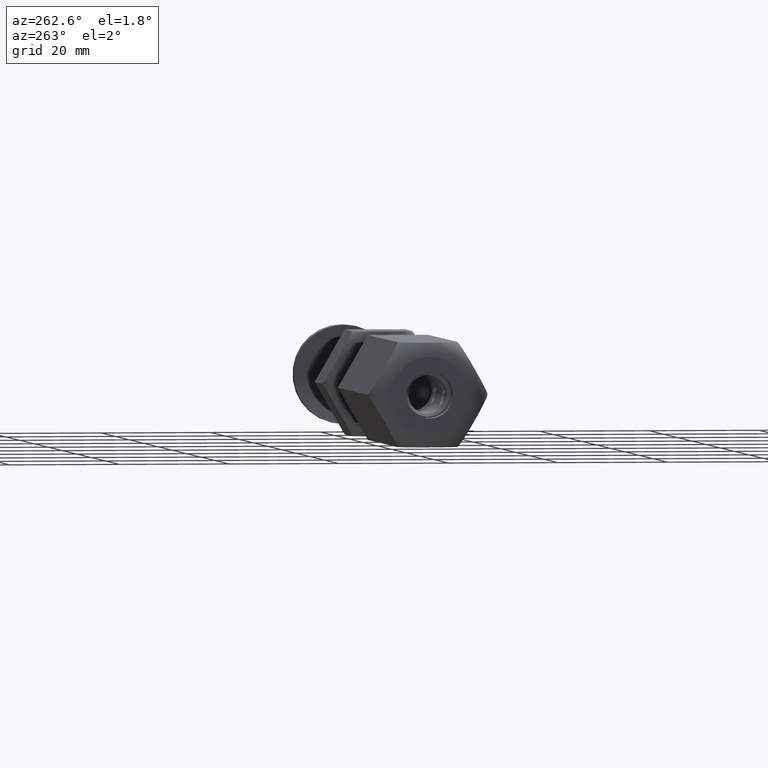
[diagram: clean part render]
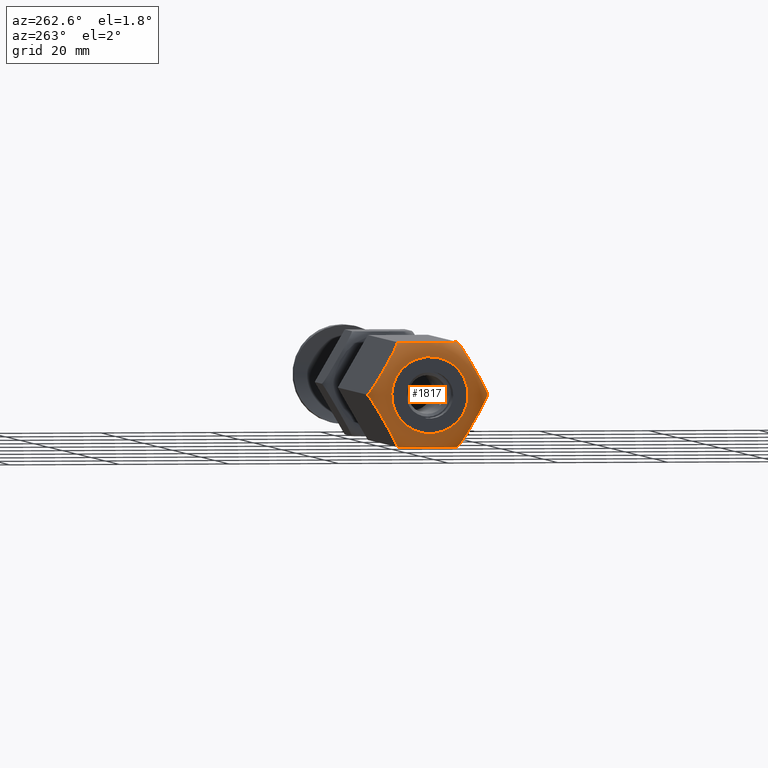
[diagram: same view with one face highlighted and labeled with its STEP entity id]
A machine part, auxiliary view. The second image highlights one B-rep face of the part: STEP entity #1817.
In plain terms, the highlighted toroidal blend (fillet) surface has major radius 6.9697 mm and minor (blend) radius 4 mm.
Its self-contained STEP definition (entity closure, byte-faithful):
#140 = CARTESIAN_POINT ( 'NONE',  ( -5.746149253409090996, 7.652114296343381028, 44.05675738102539896 ) ) ;
#163 = CARTESIAN_POINT ( 'NONE',  ( 0.2096293518114210330, -10.84862555190451872, 41.97842836769320485 ) ) ;
#187 = FACE_OUTER_BOUND ( 'NONE', #5970, .T. ) ;
#260 = CARTESIAN_POINT ( 'NONE',  ( -0.1074483461378910043, 10.90761978303619273, 41.71254742186170716 ) ) ;
#391 = CARTESIAN_POINT ( 'NONE',  ( -9.087533513614141967, -5.722965194248022414, 42.34401321087241854 ) ) ;
#490 = CARTESIAN_POINT ( 'NONE',  ( 9.500000000000001776, 5.013585651709942859, 42.35461333382185956 ) ) ;
#544 = CARTESIAN_POINT ( 'NONE',  ( 0.4079178571029115075, 10.73414362999726634, 42.35403578762996801 ) ) ;
#916 = CARTESIAN_POINT ( 'NONE',  ( 9.499999999999992895, -5.484827557301450440, 40.99999999999999289 ) ) ;
#1144 = B_SPLINE_CURVE_WITH_KNOTS ( 'NONE', 3,
 ( #8438, #11130, #13924, #15254, #11297, #11185, #6908, #5615, #12501, #5562, #5668, #4088, #1360, #15312, #8320, #140, #18079, #9718, #9773, #2826, #4201, #15373, #1470, #2941, #4031, #17405, #13198, #8981, #7132, #11358, #1957, #260, #16942, #15542, #6233, #3051 ),
 .UNSPECIFIED., .F., .F.,
 ( 4, 2, 2, 2, 2, 2, 2, 2, 2, 2, 2, 2, 2, 2, 2, 2, 2, 4 ),
 ( 1.970171766495558710E-07, 0.0004336534328667719304, 0.0008671098485568943691, 0.001734022679937157569, 0.002600935511317420661, 0.003467848342697683970, 0.004334761174077946845, 0.005201674005458210154, 0.006935499668218738506, 0.008669325330979266858, 0.009536238162359531034, 0.01040315099373979521, 0.01127006382512006112, 0.01213697665650032703, 0.01257043307219046432, 0.01300388948788060509, 0.01343734590357074238, 0.01387080231926088314 ),
 .UNSPECIFIED. ) ;
#1157 = CARTESIAN_POINT ( 'NONE',  ( 2.778568392603399939, -9.365447905171528475, 43.86274081669362346 ) ) ;
#1179 = CARTESIAN_POINT ( 'NONE',  ( 8.749598401841787165, -5.918072121998414481, 42.77482519484067325 ) ) ;
#1180 = ORIENTED_EDGE ( 'NONE', *, *, #14358, .F. ) ;
#1259 = CARTESIAN_POINT ( 'NONE',  ( -9.500000000000001776, 5.173457888380996295, 42.10142971479526608 ) ) ;
#1319 = CARTESIAN_POINT ( 'NONE',  ( -9.500000000000001776, -2.844431066938136965, 43.73303398536184972 ) ) ;
#1360 = CARTESIAN_POINT ( 'NONE',  ( -7.207038754022406124, 6.808669349907987112, 43.71285843032678287 ) ) ;
#1433 = CARTESIAN_POINT ( 'NONE',  ( -9.500000000000003553, -5.182623242737443015, 42.11369615199313898 ) ) ;
#1470 = CARTESIAN_POINT ( 'NONE',  ( -2.058143797317456336, 9.781385239190695913, 43.62364900213911056 ) ) ;
#1619 = CARTESIAN_POINT ( 'NONE',  ( -2.662758681361504645E-15, -10.96965511460289200, 40.99999999999999289 ) ) ;
#1669 = CARTESIAN_POINT ( 'NONE',  ( 0.1074483461379034110, -10.90761978303619095, 41.71254742186172138 ) ) ;
#1722 = B_SPLINE_CURVE_WITH_KNOTS ( 'NONE', 3,
 ( #12152, #13536, #15160, #13943, #9787, #1433, #15102, #3991, #2606, #6925, #2781, #1319, #2662, #6810, #11039, #13882, #12454, #5402, #13776, #4046, #16544, #6868, #9674, #6983, #15272, #2724, #8337, #1259, #13828, #16729, #8394, #5465, #16666, #3926 ),
 .UNSPECIFIED., .F., .F.,
 ( 4, 2, 2, 2, 2, 2, 2, 2, 2, 2, 2, 2, 2, 2, 2, 2, 4 ),
 ( 0.02061078917373725464, 0.02103961468721956413, 0.02146844020070187015, 0.02232609122766650647, 0.02318374225463114280, 0.02404139328159577912, 0.02575669533552505178, 0.02747199738945432443, 0.02918729944338359361, 0.03004495047034823341, 0.03090260149731286626, 0.03176025252427749912, 0.03261790355124213892, 0.03304672906472446575, 0.03347555457820679259, 0.03390438009168911249, 0.03433320560517143932 ),
 .UNSPECIFIED. ) ;
#1750 = CARTESIAN_POINT ( 'NONE',  ( 0.01387679552006076782, 10.96164334297389154, 41.29054539716901218 ) ) ;
#1786 = CARTESIAN_POINT ( 'NONE',  ( -9.486107349758023943, -5.492848482658410525, 41.29056907888802641 ) ) ;
#1817 = ADVANCED_FACE ( 'NONE', ( #187, #8279 ), #14586, .T. ) ;
#1847 = CARTESIAN_POINT ( 'NONE',  ( -9.228811346639384183, -5.641398399320372015, 42.10434891476232622 ) ) ;
#1872 = CARTESIAN_POINT ( 'NONE',  ( 7.441856202682536114, 6.673097432713642085, 43.62364900213911056 ) ) ;
#1908 = CARTESIAN_POINT ( 'NONE',  ( -5.746289545444438041, -7.652033298699014274, 44.05664237914576375 ) ) ;
#1934 = CARTESIAN_POINT ( 'NONE',  ( 9.087533513614150849, 5.722965194248011755, 42.34401321087241854 ) ) ;
#1945 = CARTESIAN_POINT ( 'NONE',  ( 9.499999999999998224, 5.406508719385637818, 41.57499903506205641 ) ) ;
#1957 = CARTESIAN_POINT ( 'NONE',  ( -0.2096293518114090426, 10.84862555190452227, 41.97842836769322616 ) ) ;
#1984 = EDGE_LOOP ( 'NONE', ( #7456, #17737, #6610, #10709, #1180, #10881 ) ) ;
#2067 = CARTESIAN_POINT ( 'NONE',  ( 0.2608168449322912918, 10.81907243897203941, 42.11147553663365528 ) ) ;
#2075 = CARTESIAN_POINT ( 'NONE',  ( 9.500000000000005329, 1.139199404431380236, 44.05807432680976632 ) ) ;
#2195 = CARTESIAN_POINT ( 'NONE',  ( 9.500000000000000000, -5.173457888380992742, 42.10142971479525897 ) ) ;
#2606 = CARTESIAN_POINT ( 'NONE',  ( -9.500000000000001776, -4.389694262550531967, 42.95766156815216874 ) ) ;
#2662 = CARTESIAN_POINT ( 'NONE',  ( -9.499999999999998224, -2.277844194733424477, 43.87583449004472413 ) ) ;
#2700 = CARTESIAN_POINT ( 'NONE',  ( 3.753710454555565956, -8.802449373205325500, 44.05664237914577797 ) ) ;
#2724 = CARTESIAN_POINT ( 'NONE',  ( -9.500000000000000000, 4.917998417756520801, 42.45559523632030619 ) ) ;
#2781 = CARTESIAN_POINT ( 'NONE',  ( -9.500000000000001776, -3.641228963904356242, 43.40259825967543605 ) ) ;
#2826 = CARTESIAN_POINT ( 'NONE',  ( -3.021065120984054442, 9.225442353763350312, 43.92069474690411823 ) ) ;
#2907 = CARTESIAN_POINT ( 'NONE',  ( 0.4124664863858539809, -10.73151747765632003, 42.34401321087241854 ) ) ;
#2941 = CARTESIAN_POINT ( 'NONE',  ( -1.593998663515251213, 10.04935955713445139, 43.40131334444888722 ) ) ;
#3051 = CARTESIAN_POINT ( 'NONE',  ( 1.214306433183764966E-14, 10.96965511460288845, 40.99999999999999289 ) ) ;
#3055 = EDGE_CURVE ( 'NONE', #8391, #8328, #11475, .T. ) ;
#3069 = VERTEX_POINT ( 'NONE', #14501 ) ;
#3074 = CARTESIAN_POINT ( 'NONE',  ( 0.06728216614629926873, -10.93080973786666377, 41.57272147207824275 ) ) ;
#3113 = CARTESIAN_POINT ( 'NONE',  ( -9.499999999999991118, -5.484827557301453993, 40.99999999999999289 ) ) ;
#3185 = CARTESIAN_POINT ( 'NONE',  ( -0.9481396356622003863, -10.42224644072396877, 42.95737215773480244 ) ) ;
#3280 = CARTESIAN_POINT ( 'NONE',  ( 9.500000000000003553, 4.615178690308512799, 42.77783973590173616 ) ) ;
#3307 = CARTESIAN_POINT ( 'NONE',  ( -3.019137282246467713, -9.226555391977461440, 43.92029236874594034 ) ) ;
#3337 = CARTESIAN_POINT ( 'NONE',  ( 9.500000000000001776, 2.844431066938136521, 43.73303398536185682 ) ) ;
#3372 = CARTESIAN_POINT ( 'NONE',  ( -8.130230771905711862, -6.275664189869351262, 43.27037286388833337 ) ) ;
#3459 = CARTESIAN_POINT ( 'NONE',  ( 1.370466869360149831, 10.17841569866234330, 43.27070080692345044 ) ) ;
#3470 = CARTESIAN_POINT ( 'NONE',  ( 9.500000000000000000, -3.123764832072919440, 43.61800818784174538 ) ) ;
#3537 = CARTESIAN_POINT ( 'NONE',  ( 9.500000000000001776, -2.291064191819613516, 43.85944363510402866 ) ) ;
#3594 = CARTESIAN_POINT ( 'NONE',  ( 9.500000000000001776, -5.407798282936109757, 41.57043944271958225 ) ) ;
#3618 = CARTESIAN_POINT ( 'NONE',  ( 9.392357395636423689, -5.546975043907027114, 41.71312555923451271 ) ) ;
#3652 = CARTESIAN_POINT ( 'NONE',  ( 9.500000000000001776, -5.469102340158111808, 41.28836256158390228 ) ) ;
#3844 = CARTESIAN_POINT ( 'NONE',  ( 6.724234168576180615, -7.087416707281356310, 43.86206037955516024 ) ) ;
#3852 = VERTEX_POINT ( 'NONE', #3113 ) ;
#3926 = CARTESIAN_POINT ( 'NONE',  ( -9.499999999999996447, 5.484827557301445999, 40.99999999999999289 ) ) ;
#3991 = CARTESIAN_POINT ( 'NONE',  ( -9.500000000000003553, -4.615178690308510134, 42.77783973590176458 ) ) ;
#4031 = CARTESIAN_POINT ( 'NONE',  ( -1.369769228094275704, 10.17881848203499118, 43.27037286388834758 ) ) ;
#4046 = CARTESIAN_POINT ( 'NONE',  ( -9.499999999999998224, 2.847465520593317923, 43.70964040642540738 ) ) ;
#4088 = CARTESIAN_POINT ( 'NONE',  ( -7.446822779551734328, 6.670229978221253297, 43.62148147512581886 ) ) ;
#4201 = CARTESIAN_POINT ( 'NONE',  ( -2.778568392603388837, 9.365447905171532028, 43.86274081669363056 ) ) ;
#4467 = CARTESIAN_POINT ( 'NONE',  ( 0.000000000000000000, 1.734723475976807094E-15, 45.00000000000000000 ) ) ;
#4509 = CARTESIAN_POINT ( 'NONE',  ( -1.170034844473985693E-14, -10.96965511460288667, 41.14667168911100958 ) ) ;
#4658 = CARTESIAN_POINT ( 'NONE',  ( 6.478934879015941561, 7.229040318140980581, 43.92069474690413244 ) ) ;
#4727 = CARTESIAN_POINT ( 'NONE',  ( 9.500000000000003553, 2.277844194733428917, 43.87583449004473835 ) ) ;
#4830 = CARTESIAN_POINT ( 'NONE',  ( -6.721431607396602281, -7.089034766732805082, 43.86274081669362346 ) ) ;
#4853 = CARTESIAN_POINT ( 'NONE',  ( 7.202040441340117560, 6.811555127080601402, 43.71458572105390061 ) ) ;
#4861 = CARTESIAN_POINT ( 'NONE',  ( 9.499999999999998224, -5.484827557302361711, 41.14526559634035152 ) ) ;
#4956 = CARTESIAN_POINT ( 'NONE',  ( 9.486123204479936177, -5.492839328930444687, 41.29054539716901928 ) ) ;
#4998 = CARTESIAN_POINT ( 'NONE',  ( 9.500000000000000000, -2.847465520593317478, 43.70964040642540738 ) ) ;
#5137 = CARTESIAN_POINT ( 'NONE',  ( 7.446822779551736993, -6.670229978221255962, 43.62148147512580465 ) ) ;
#5312 = ORIENTED_EDGE ( 'NONE', *, *, #8177, .T. ) ;
#5402 = CARTESIAN_POINT ( 'NONE',  ( -9.500000000000001776, 2.010578411236906504, 43.91797283457773204 ) ) ;
#5465 = CARTESIAN_POINT ( 'NONE',  ( -9.500000000000001776, 5.469102340158117137, 41.28836256158390228 ) ) ;
#5509 = CIRCLE ( 'NONE', #8560, 6.969655114602885781 ) ;
#5562 = CARTESIAN_POINT ( 'NONE',  ( -8.129533130639849503, 6.276066973241989366, 43.27070080692345755 ) ) ;
#5615 = CARTESIAN_POINT ( 'NONE',  ( -8.749598401841790718, 5.918072121998408264, 42.77482519484067325 ) ) ;
#5668 = CARTESIAN_POINT ( 'NONE',  ( -7.907273331264584648, 6.404388728241327655, 43.40048957431875465 ) ) ;
#5956 = CARTESIAN_POINT ( 'NONE',  ( 9.499999999999998224, 5.468641017583585118, 41.29182092186051278 ) ) ;
#5970 = EDGE_LOOP ( 'NONE', ( #5312 ) ) ;
#5985 = CARTESIAN_POINT ( 'NONE',  ( -9.392551653862094341, -5.546862888868147934, 41.71254742186172848 ) ) ;
#6017 = CARTESIAN_POINT ( 'NONE',  ( 9.500000000000003553, 5.360823783412460131, 41.71252927763232066 ) ) ;
#6146 = CARTESIAN_POINT ( 'NONE',  ( 9.007164337273732002, 5.769366359842703851, 42.45831529050607855 ) ) ;
#6182 = CARTESIAN_POINT ( 'NONE',  ( -0.2608168449323025606, -10.81907243897203941, 42.11147553663365528 ) ) ;
#6217 = CARTESIAN_POINT ( 'NONE',  ( 9.500000000000001776, 5.182623242737443903, 42.11369615199313898 ) ) ;
#6233 = CARTESIAN_POINT ( 'NONE',  ( 8.261394678886944744E-15, 10.96965511460289200, 41.14676478437783658 ) ) ;
#6249 = CARTESIAN_POINT ( 'NONE',  ( -0.4079178571029237199, -10.73414362999726812, 42.35403578762995380 ) ) ;
#6270 = CARTESIAN_POINT ( 'NONE',  ( 9.228811346639393065, 5.641398399320363133, 42.10434891476233332 ) ) ;
#6307 = B_SPLINE_CURVE_WITH_KNOTS ( 'NONE', 3,
 ( #10589, #10459, #4956, #9243, #3618, #17347, #9480, #1179, #12127, #10823, #9363, #5137, #6598, #3844, #10892, #6723, #8131, #17959, #2700, #7925, #1157, #16977, #7473, #15616, #11206, #14177, #16854, #16968, #2907, #8514, #163, #1669, #3074, #16793, #8460, #8400 ),
 .UNSPECIFIED., .F., .F.,
 ( 4, 2, 2, 2, 2, 2, 2, 2, 2, 2, 2, 2, 2, 2, 2, 2, 2, 4 ),
 ( 1.970171766495558710E-07, 0.0004336534328667695452, 0.0008671098485568895986, 0.001734022679937151064, 0.002600935511317412421, 0.003467848342697673995, 0.004334761174077936437, 0.005201674005458199745, 0.006935499668218721159, 0.008669325330979239103, 0.009536238162359501544, 0.01040315099373976225, 0.01127006382512002469, 0.01213697665650028540, 0.01257043307219042443, 0.01300388948788056172, 0.01343734590357070074, 0.01387080231926083977 ),
 .UNSPECIFIED. ) ;
#6330 = CARTESIAN_POINT ( 'NONE',  ( 7.906001336484742126, 6.405123114769884829, 43.40131334444888722 ) ) ;
#6331 = CARTESIAN_POINT ( 'NONE',  ( 9.499999999999996447, 5.484827557301445111, 40.99999999999999289 ) ) ;
#6569 = CARTESIAN_POINT ( 'NONE',  ( 1.214306433183764966E-14, 10.96965511460288845, 40.99999999999999289 ) ) ;
#6598 = CARTESIAN_POINT ( 'NONE',  ( 7.207038754022402571, -6.808669349907988888, 43.71285843032676866 ) ) ;
#6610 = ORIENTED_EDGE ( 'NONE', *, *, #17053, .F. ) ;
#6723 = CARTESIAN_POINT ( 'NONE',  ( 5.746149253409094548, -7.652114296343383693, 44.05675738102539185 ) ) ;
#6810 = CARTESIAN_POINT ( 'NONE',  ( -9.500000000000001776, -1.139199404431374019, 44.05807432680976632 ) ) ;
#6868 = CARTESIAN_POINT ( 'NONE',  ( -9.499999999999998224, 3.655718835510457509, 43.39572968777603279 ) ) ;
#6908 = CARTESIAN_POINT ( 'NONE',  ( -9.092082142897089270, 5.720339041907063660, 42.35403578762996801 ) ) ;
#6925 = CARTESIAN_POINT ( 'NONE',  ( -9.500000000000000000, -3.900897879714690930, 43.27154627013154453 ) ) ;
#6983 = CARTESIAN_POINT ( 'NONE',  ( -9.500000000000000000, 4.400181222436072126, 42.94970153422130466 ) ) ;
#7061 = EDGE_CURVE ( 'NONE', #15389, #8391, #1144, .T. ) ;
#7132 = CARTESIAN_POINT ( 'NONE',  ( -0.4124664863858385488, 10.73151747765632003, 42.34401321087241143 ) ) ;
#7288 = CARTESIAN_POINT ( 'NONE',  ( 1.214306433183764966E-14, 10.96965511460288845, 40.99999999999999289 ) ) ;
#7297 = DIRECTION ( 'NONE',  ( -0.000000000000000000, -0.000000000000000000, -1.000000000000000000 ) ) ;
#7389 = CARTESIAN_POINT ( 'NONE',  ( -9.499999999999991118, -5.484827557301453993, 40.99999999999999289 ) ) ;
#7456 = ORIENTED_EDGE ( 'NONE', *, *, #3055, .F. ) ;
#7473 = CARTESIAN_POINT ( 'NONE',  ( 2.058143797317470103, -9.781385239190688807, 43.62364900213911056 ) ) ;
#7488 = CARTESIAN_POINT ( 'NONE',  ( 5.746289545444438041, 7.652033298699012498, 44.05664237914577797 ) ) ;
#7526 = CARTESIAN_POINT ( 'NONE',  ( -1.370466869360159601, -10.17841569866234153, 43.27070080692345044 ) ) ;
#7545 = CARTESIAN_POINT ( 'NONE',  ( 5.251150971816114676, 7.937901687469492096, 44.09793675888082731 ) ) ;
#7589 = CARTESIAN_POINT ( 'NONE',  ( -7.441856202682529897, -6.673097432713646526, 43.62364900213910346 ) ) ;
#7651 = CARTESIAN_POINT ( 'NONE',  ( -3.753850746590910337, -8.802368375560954306, 44.05675738102539896 ) ) ;
#7680 = CARTESIAN_POINT ( 'NONE',  ( 9.500000000000001776, -3.914850968721924840, 43.26375183071365882 ) ) ;
#7810 = CARTESIAN_POINT ( 'NONE',  ( 9.500000000000001776, 0.5620901871002182970, 44.09870003974981501 ) ) ;
#7925 = CARTESIAN_POINT ( 'NONE',  ( 3.021065120984062435, -9.225442353763352088, 43.92069474690411823 ) ) ;
#8131 = CARTESIAN_POINT ( 'NONE',  ( 5.250349426452457280, -7.938364459900969727, 44.09798277058472138 ) ) ;
#8177 = EDGE_CURVE ( 'NONE', #9688, #9688, #5509, .T. ) ;
#8279 = FACE_OUTER_BOUND ( 'NONE', #1984, .T. ) ;
#8320 = CARTESIAN_POINT ( 'NONE',  ( -6.480862717753538504, 7.227927279926873005, 43.92029236874594034 ) ) ;
#8328 = VERTEX_POINT ( 'NONE', #6331 ) ;
#8337 = CARTESIAN_POINT ( 'NONE',  ( -9.500000000000001776, 5.010300457011280351, 42.34175406390875906 ) ) ;
#8391 = VERTEX_POINT ( 'NONE', #6569 ) ;
#8394 = CARTESIAN_POINT ( 'NONE',  ( -9.500000000000000000, 5.407798282936115086, 41.57043944271957514 ) ) ;
#8400 = CARTESIAN_POINT ( 'NONE',  ( -2.662758681361504645E-15, -10.96965511460289200, 40.99999999999999289 ) ) ;
#8438 = CARTESIAN_POINT ( 'NONE',  ( -9.499999999999996447, 5.484827557301445999, 40.99999999999999289 ) ) ;
#8460 = CARTESIAN_POINT ( 'NONE',  ( 6.317171720622571929E-15, -10.96965511460289022, 41.14676478437783658 ) ) ;
#8514 = CARTESIAN_POINT ( 'NONE',  ( 0.2711886533606127636, -10.81308427258397309, 42.10434891476234043 ) ) ;
#8560 = AXIS2_PLACEMENT_3D ( 'NONE', #4467, #11583, #14258 ) ;
#8806 = CARTESIAN_POINT ( 'NONE',  ( -2.292961245977600537, -9.645813321996348222, 43.71285843032676866 ) ) ;
#8870 = CARTESIAN_POINT ( 'NONE',  ( -1.592726668735423345, -10.05009394366300057, 43.40048957431874044 ) ) ;
#8895 = CARTESIAN_POINT ( 'NONE',  ( 6.721431607396604946, 7.089034766732802417, 43.86274081669363056 ) ) ;
#8905 = CARTESIAN_POINT ( 'NONE',  ( 9.499999999999996447, 5.484827557301445111, 40.99999999999999289 ) ) ;
#8955 = CARTESIAN_POINT ( 'NONE',  ( 9.499999999999996447, 5.484827557301445111, 40.99999999999999289 ) ) ;
#8981 = CARTESIAN_POINT ( 'NONE',  ( -0.4928356627262582834, 10.68511631206163059, 42.45831529050607145 ) ) ;
#8997 = CARTESIAN_POINT ( 'NONE',  ( -4.249650573547546273, -8.516118212003366494, 44.09798277058471427 ) ) ;
#9024 = CARTESIAN_POINT ( 'NONE',  ( 0.9481396356621897281, 10.42224644072396700, 42.95737215773479534 ) ) ;
#9082 = CARTESIAN_POINT ( 'NONE',  ( 8.130230771905718967, 6.275664189869345932, 43.27037286388835469 ) ) ;
#9167 = EDGE_CURVE ( 'NONE', #8328, #3069, #12389, .T. ) ;
#9243 = CARTESIAN_POINT ( 'NONE',  ( 9.432634108725242328, -5.523721272763122414, 41.57310375832807381 ) ) ;
#9276 = CARTESIAN_POINT ( 'NONE',  ( 9.500000000000003553, -5.244244475665857941, 41.97551227191203083 ) ) ;
#9363 = CARTESIAN_POINT ( 'NONE',  ( 7.907273331264582872, -6.404388728241333872, 43.40048957431874754 ) ) ;
#9480 = CARTESIAN_POINT ( 'NONE',  ( 9.092082142897078612, -5.720339041907068101, 42.35403578762993249 ) ) ;
#9674 = CARTESIAN_POINT ( 'NONE',  ( -9.500000000000001776, 3.914850968721927504, 43.26375183071366592 ) ) ;
#9688 = VERTEX_POINT ( 'NONE', #10886 ) ;
#9718 = CARTESIAN_POINT ( 'NONE',  ( -4.248849028183879994, 8.516580984434845902, 44.09793675888082731 ) ) ;
#9773 = CARTESIAN_POINT ( 'NONE',  ( -3.753710454555559295, 8.802449373205321947, 44.05664237914577086 ) ) ;
#9787 = CARTESIAN_POINT ( 'NONE',  ( -9.500000000000003553, -5.360823783412460131, 41.71252927763232066 ) ) ;
#10103 = CARTESIAN_POINT ( 'NONE',  ( 1.419838977835020549E-15, 10.96965511460289022, 41.14667168911100958 ) ) ;
#10138 = CARTESIAN_POINT ( 'NONE',  ( -9.432717833853700995, -5.523672934037675120, 41.57272147207823565 ) ) ;
#10272 = CARTESIAN_POINT ( 'NONE',  ( -0.1076426043635847346, -10.90750762799730467, 41.71312555923449139 ) ) ;
#10295 = CARTESIAN_POINT ( 'NONE',  ( 4.249650573547546273, 8.516118212003366494, 44.09798277058472848 ) ) ;
#10400 = CARTESIAN_POINT ( 'NONE',  ( -9.290370648188575942, -5.605857119999816618, 41.97842836769320485 ) ) ;
#10425 = CARTESIAN_POINT ( 'NONE',  ( 2.292961245977595208, 9.645813321996348222, 43.71285843032676866 ) ) ;
#10459 = CARTESIAN_POINT ( 'NONE',  ( 9.499999999999994671, -5.484827557301448664, 41.14667168911100248 ) ) ;
#10492 = CARTESIAN_POINT ( 'NONE',  ( 9.486107349758032825, 5.492848482658401643, 41.29056907888801931 ) ) ;
#10589 = CARTESIAN_POINT ( 'NONE',  ( 9.499999999999992895, -5.484827557301450440, 40.99999999999999289 ) ) ;
#10709 = ORIENTED_EDGE ( 'NONE', *, *, #13208, .F. ) ;
#10823 = CARTESIAN_POINT ( 'NONE',  ( 8.129533130639845950, -6.276066973241992919, 43.27070080692344334 ) ) ;
#10881 = ORIENTED_EDGE ( 'NONE', *, *, #9167, .F. ) ;
#10886 = CARTESIAN_POINT ( 'NONE',  ( -6.969655114602885781, 1.734723475976807094E-15, 45.00000000000000000 ) ) ;
#10892 = CARTESIAN_POINT ( 'NONE',  ( 6.480862717753539393, -7.227927279926876558, 43.92029236874592613 ) ) ;
#11039 = CARTESIAN_POINT ( 'NONE',  ( -9.500000000000003553, -0.5620901871002095262, 44.09870003974981501 ) ) ;
#11050 = VERTEX_POINT ( 'NONE', #1619 ) ;
#11130 = CARTESIAN_POINT ( 'NONE',  ( -9.500000000000001776, 5.484827557301439782, 41.14667168911100958 ) ) ;
#11185 = CARTESIAN_POINT ( 'NONE',  ( -9.239183155067706821, 5.635410232932287045, 42.11147553663364107 ) ) ;
#11206 = CARTESIAN_POINT ( 'NONE',  ( 1.369769228094291025, -10.17881848203498407, 43.27037286388834048 ) ) ;
#11297 = CARTESIAN_POINT ( 'NONE',  ( -9.392357395636430795, 5.546975043907021785, 41.71312555923451981 ) ) ;
#11358 = CARTESIAN_POINT ( 'NONE',  ( -0.2711886533605979976, 10.81308427258397131, 42.10434891476233332 ) ) ;
#11475 = B_SPLINE_CURVE_WITH_KNOTS ( 'NONE', 3,
 ( #7288, #10103, #1750, #14315, #13297, #2067, #544, #16071, #9024, #3459, #11846, #15824, #10425, #14561, #13240, #13048, #10295, #7545, #7488, #4658, #8895, #4853, #1872, #6330, #9082, #14626, #17505, #6146, #1934, #6270, #11711, #16009, #13111, #10492, #11646, #8955 ),
 .UNSPECIFIED., .F., .F.,
 ( 4, 2, 2, 2, 2, 2, 2, 2, 2, 2, 2, 2, 2, 2, 2, 2, 2, 4 ),
 ( 1.970171766497443623E-07, 0.0004336534328667714967, 0.0008671098485568931764, 0.001734022679937155835, 0.002600935511317418493, 0.003467848342697681368, 0.004334761174077943376, 0.005201674005458205817, 0.006935499668218736771, 0.008669325330979266858, 0.009536238162359532769, 0.01040315099373979521, 0.01127006382512005592, 0.01213697665650031662, 0.01257043307219045565, 0.01300388948788059121, 0.01343734590357073024, 0.01387080231926086753 ),
 .UNSPECIFIED. ) ;
#11558 = CARTESIAN_POINT ( 'NONE',  ( -9.499999999999994671, -5.484827557301452217, 41.14676478437783658 ) ) ;
#11583 = DIRECTION ( 'NONE',  ( -0.000000000000000000, -0.000000000000000000, -1.000000000000000000 ) ) ;
#11646 = CARTESIAN_POINT ( 'NONE',  ( 9.499999999999998224, 5.484827557301444223, 41.14676478437782947 ) ) ;
#11688 = CARTESIAN_POINT ( 'NONE',  ( -0.7504015981582198291, -10.53641054990592174, 42.77482519484070167 ) ) ;
#11711 = CARTESIAN_POINT ( 'NONE',  ( 9.290370648188590152, 5.605857119999812177, 41.97842836769320485 ) ) ;
#11721 = CARTESIAN_POINT ( 'NONE',  ( 9.500000000000001776, 3.641228963904356686, 43.40259825967544316 ) ) ;
#11752 = CARTESIAN_POINT ( 'NONE',  ( -2.053177220448271001, -9.784252693683074042, 43.62148147512581886 ) ) ;
#11846 = CARTESIAN_POINT ( 'NONE',  ( 1.592726668735416018, 10.05009394366300235, 43.40048957431875465 ) ) ;
#11981 = CARTESIAN_POINT ( 'NONE',  ( 9.500000000000001776, -4.623278030274161843, 42.77031136518234433 ) ) ;
#12127 = CARTESIAN_POINT ( 'NONE',  ( 8.551860364337805720, -6.032236231180365671, 42.95737215773479534 ) ) ;
#12152 = CARTESIAN_POINT ( 'NONE',  ( -9.499999999999991118, -5.484827557301453993, 40.99999999999999289 ) ) ;
#12389 = B_SPLINE_CURVE_WITH_KNOTS ( 'NONE', 3,
 ( #8905, #14384, #5956, #1945, #6017, #6217, #490, #3280, #13055, #15957, #11721, #3337, #4727, #2075, #7810, #16019, #14758, #17452, #3537, #4998, #3470, #17637, #7680, #16079, #11981, #16203, #14875, #2195, #9276, #13308, #3594, #3652, #4861, #916 ),
 .UNSPECIFIED., .F., .F.,
 ( 4, 2, 2, 2, 2, 2, 2, 2, 2, 2, 2, 2, 2, 2, 2, 2, 4 ),
 ( 0.02061078917373724076, 0.02103961468721955025, 0.02146844020070185627, 0.02232609122766649259, 0.02318374225463112892, 0.02404139328159576525, 0.02575669533552503443, 0.02747199738945430708, 0.02918729944338357973, 0.03004495047034821953, 0.03090260149731285239, 0.03176025252427748524, 0.03261790355124212504, 0.03304672906472445187, 0.03347555457820677871, 0.03390438009168910555, 0.03433320560517143238 ),
 .UNSPECIFIED. ) ;
#12454 = CARTESIAN_POINT ( 'NONE',  ( -9.500000000000001776, 1.163787883425422720, 44.05534918801141941 ) ) ;
#12501 = CARTESIAN_POINT ( 'NONE',  ( -8.551860364337809273, 6.032236231180360342, 42.95737215773482376 ) ) ;
#12911 = CARTESIAN_POINT ( 'NONE',  ( -2.662758681361504645E-15, -10.96965511460289200, 40.99999999999999289 ) ) ;
#13048 = CARTESIAN_POINT ( 'NONE',  ( 3.753850746590907228, 8.802368375560952529, 44.05675738102540606 ) ) ;
#13055 = CARTESIAN_POINT ( 'NONE',  ( 9.499999999999998224, 4.389694262550527526, 42.95766156815216164 ) ) ;
#13086 = CARTESIAN_POINT ( 'NONE',  ( -7.202040441340114896, -6.811555127080606731, 43.71458572105387930 ) ) ;
#13111 = CARTESIAN_POINT ( 'NONE',  ( 9.432717833853709877, 5.523672934037666238, 41.57272147207824986 ) ) ;
#13151 = CARTESIAN_POINT ( 'NONE',  ( -9.007164337273723120, -5.769366359842709180, 42.45831529050606434 ) ) ;
#13169 = CARTESIAN_POINT ( 'NONE',  ( -9.499999999999996447, 5.484827557301445999, 40.99999999999999289 ) ) ;
#13198 = CARTESIAN_POINT ( 'NONE',  ( -0.7504398242444135780, 10.53638848006475826, 42.77497964306935785 ) ) ;
#13208 = EDGE_CURVE ( 'NONE', #11050, #3852, #16905, .T. ) ;
#13218 = CARTESIAN_POINT ( 'NONE',  ( -6.478934879015938009, -7.229040318140985022, 43.92069474690411113 ) ) ;
#13240 = CARTESIAN_POINT ( 'NONE',  ( 3.019137282246461940, 9.226555391977456111, 43.92029236874592613 ) ) ;
#13297 = CARTESIAN_POINT ( 'NONE',  ( 0.1076426043635725915, 10.90750762799731000, 41.71312555923451981 ) ) ;
#13308 = CARTESIAN_POINT ( 'NONE',  ( 9.500000000000000000, -5.361408888711100218, 41.71066058659646103 ) ) ;
#13536 = CARTESIAN_POINT ( 'NONE',  ( -9.499999999999998224, -5.484827557301437118, 41.14463681895105651 ) ) ;
#13776 = CARTESIAN_POINT ( 'NONE',  ( -9.500000000000001776, 2.291064191819613960, 43.85944363510402866 ) ) ;
#13828 = CARTESIAN_POINT ( 'NONE',  ( -9.500000000000001776, 5.244244475665857053, 41.97551227191202372 ) ) ;
#13882 = CARTESIAN_POINT ( 'NONE',  ( -9.500000000000005329, 0.5923194968641141145, 44.09719986646533840 ) ) ;
#13924 = CARTESIAN_POINT ( 'NONE',  ( -9.486123204479945059, 5.492839328930437581, 41.29054539716901218 ) ) ;
#13943 = CARTESIAN_POINT ( 'NONE',  ( -9.500000000000001776, -5.406508719385638706, 41.57499903506206351 ) ) ;
#14177 = CARTESIAN_POINT ( 'NONE',  ( 0.9454844053752816668, -10.42377943864487833, 42.95521106891157359 ) ) ;
#14258 = DIRECTION ( 'NONE',  ( -1.000000000000000000, 0.000000000000000000, 0.000000000000000000 ) ) ;
#14315 = CARTESIAN_POINT ( 'NONE',  ( 0.06736589127474969241, 10.93076139914121292, 41.57310375832807381 ) ) ;
#14349 = CARTESIAN_POINT ( 'NONE',  ( -0.01387679552007275649, -10.96164334297388798, 41.29054539716901928 ) ) ;
#14358 = EDGE_CURVE ( 'NONE', #3069, #11050, #6307, .T. ) ;
#14384 = CARTESIAN_POINT ( 'NONE',  ( 9.500000000000001776, 5.484827557301441558, 41.14463681895106362 ) ) ;
#14413 = CARTESIAN_POINT ( 'NONE',  ( -0.06736589127476172445, -10.93076139914120937, 41.57310375832806670 ) ) ;
#14497 = AXIS2_PLACEMENT_3D ( 'NONE', #15655, #7297, #17066 ) ;
#14501 = CARTESIAN_POINT ( 'NONE',  ( 9.499999999999992895, -5.484827557301450440, 40.99999999999999289 ) ) ;
#14561 = CARTESIAN_POINT ( 'NONE',  ( 2.775765831423820718, 9.367065964622979024, 43.86206037955515313 ) ) ;
#14586 = TOROIDAL_SURFACE ( 'NONE', #14497, 6.969655114602885781, 4.000000000000001776 ) ;
#14626 = CARTESIAN_POINT ( 'NONE',  ( 8.554515594624726660, 6.030703233259454343, 42.95521106891158780 ) ) ;
#14758 = CARTESIAN_POINT ( 'NONE',  ( 9.500000000000003553, -1.163787883425414504, 44.05534918801142652 ) ) ;
#14875 = CARTESIAN_POINT ( 'NONE',  ( 9.500000000000001776, -5.010300457011275910, 42.34175406390875906 ) ) ;
#15102 = CARTESIAN_POINT ( 'NONE',  ( -9.500000000000001776, -5.013585651709943747, 42.35461333382185956 ) ) ;
#15160 = CARTESIAN_POINT ( 'NONE',  ( -9.500000000000000000, -5.468641017583585118, 41.29182092186051989 ) ) ;
#15254 = CARTESIAN_POINT ( 'NONE',  ( -9.432634108725251210, 5.523721272763115309, 41.57310375832806670 ) ) ;
#15272 = CARTESIAN_POINT ( 'NONE',  ( -9.500000000000000000, 4.623278030274161843, 42.77031136518233723 ) ) ;
#15312 = CARTESIAN_POINT ( 'NONE',  ( -6.724234168576175286, 7.087416707281349204, 43.86206037955516024 ) ) ;
#15373 = CARTESIAN_POINT ( 'NONE',  ( -2.297959558659874890, 9.642927544823729491, 43.71458572105388640 ) ) ;
#15389 = VERTEX_POINT ( 'NONE', #13169 ) ;
#15542 = CARTESIAN_POINT ( 'NONE',  ( -0.01389265024196212860, 10.96163418924593103, 41.29056907888804062 ) ) ;
#15616 = CARTESIAN_POINT ( 'NONE',  ( 1.593998663515266978, -10.04935955713444784, 43.40131334444886591 ) ) ;
#15655 = CARTESIAN_POINT ( 'NONE',  ( 0.000000000000000000, 1.734723475976807094E-15, 40.99999999999999289 ) ) ;
#15746 = CARTESIAN_POINT ( 'NONE',  ( -2.775765831423826047, -9.367065964622980800, 43.86206037955516024 ) ) ;
#15799 = CARTESIAN_POINT ( 'NONE',  ( -8.749560175755568991, -5.918094191839584184, 42.77497964306934364 ) ) ;
#15824 = CARTESIAN_POINT ( 'NONE',  ( 2.053177220448263451, 9.784252693683079372, 43.62148147512581886 ) ) ;
#15860 = CARTESIAN_POINT ( 'NONE',  ( -8.554515594624717778, -6.030703233259460561, 42.95521106891156649 ) ) ;
#15925 = CARTESIAN_POINT ( 'NONE',  ( -7.906001336484733244, -6.405123114769891046, 43.40131334444885880 ) ) ;
#15957 = CARTESIAN_POINT ( 'NONE',  ( 9.500000000000007105, 3.900897879714688266, 43.27154627013155874 ) ) ;
#15987 = CARTESIAN_POINT ( 'NONE',  ( -5.251150971816113788, -7.937901687469492096, 44.09793675888082021 ) ) ;
#16009 = CARTESIAN_POINT ( 'NONE',  ( 9.392551653862103223, 5.546862888868137276, 41.71254742186171427 ) ) ;
#16019 = CARTESIAN_POINT ( 'NONE',  ( 9.500000000000003553, -0.5923194968641067870, 44.09719986646533130 ) ) ;
#16071 = CARTESIAN_POINT ( 'NONE',  ( 0.7504015981582081718, 10.53641054990592174, 42.77482519484068746 ) ) ;
#16079 = CARTESIAN_POINT ( 'NONE',  ( 9.500000000000000000, -4.400181222436070350, 42.94970153422131176 ) ) ;
#16203 = CARTESIAN_POINT ( 'NONE',  ( 9.500000000000001776, -4.917998417756519913, 42.45559523632030619 ) ) ;
#16544 = CARTESIAN_POINT ( 'NONE',  ( -9.500000000000001776, 3.123764832072925213, 43.61800818784175959 ) ) ;
#16666 = CARTESIAN_POINT ( 'NONE',  ( -9.500000000000003553, 5.484827557302368817, 41.14526559634038705 ) ) ;
#16729 = CARTESIAN_POINT ( 'NONE',  ( -9.500000000000000000, 5.361408888711101994, 41.71066058659648235 ) ) ;
#16793 = CARTESIAN_POINT ( 'NONE',  ( 0.01389265024197705069, -10.96163418924592570, 41.29056907888802641 ) ) ;
#16854 = CARTESIAN_POINT ( 'NONE',  ( 0.7504398242444304534, -10.53638848006475115, 42.77497964306934364 ) ) ;
#16905 = B_SPLINE_CURVE_WITH_KNOTS ( 'NONE', 3,
 ( #12911, #4509, #14349, #14413, #10272, #6182, #6249, #11688, #3185, #7526, #8870, #11752, #8806, #15746, #3307, #7651, #8997, #15987, #1908, #13218, #4830, #13086, #7589, #15925, #3372, #15860, #15799, #13151, #391, #1847, #10400, #5985, #10138, #1786, #11558, #7389 ),
 .UNSPECIFIED., .F., .F.,
 ( 4, 2, 2, 2, 2, 2, 2, 2, 2, 2, 2, 2, 2, 2, 2, 2, 2, 4 ),
 ( 1.970171766496658000E-07, 0.0004336534328667891150, 0.0008671098485569286298, 0.001734022679937189879, 0.002600935511317451453, 0.003467848342697711726, 0.004334761174077972866, 0.005201674005458234440, 0.006935499668218753251, 0.008669325330979273797, 0.009536238162359534504, 0.01040315099373979521, 0.01127006382512005592, 0.01213697665650031662, 0.01257043307219044698, 0.01300388948788057907, 0.01343734590357071115, 0.01387080231926084151 ),
 .UNSPECIFIED. ) ;
#16942 = CARTESIAN_POINT ( 'NONE',  ( -0.06728216614628501624, 10.93080973786666377, 41.57272147207822854 ) ) ;
#16968 = CARTESIAN_POINT ( 'NONE',  ( 0.4928356627262751588, -10.68511631206163059, 42.45831529050607145 ) ) ;
#16977 = CARTESIAN_POINT ( 'NONE',  ( 2.297959558659887325, -9.642927544823729491, 43.71458572105388640 ) ) ;
#17053 = EDGE_CURVE ( 'NONE', #3852, #15389, #1722, .T. ) ;
#17066 = DIRECTION ( 'NONE',  ( -1.000000000000000000, 0.000000000000000000, 0.000000000000000000 ) ) ;
#17347 = CARTESIAN_POINT ( 'NONE',  ( 9.239183155067706821, -5.635410232932294150, 42.11147553663364107 ) ) ;
#17405 = CARTESIAN_POINT ( 'NONE',  ( -0.9454844053752656796, 10.42377943864488365, 42.95521106891156649 ) ) ;
#17452 = CARTESIAN_POINT ( 'NONE',  ( 9.500000000000001776, -2.010578411236898067, 43.91797283457773204 ) ) ;
#17505 = CARTESIAN_POINT ( 'NONE',  ( 8.749560175755577873, 5.918094191839579743, 42.77497964306937916 ) ) ;
#17637 = CARTESIAN_POINT ( 'NONE',  ( 9.499999999999998224, -3.655718835510453069, 43.39572968777603279 ) ) ;
#17737 = ORIENTED_EDGE ( 'NONE', *, *, #7061, .F. ) ;
#17959 = CARTESIAN_POINT ( 'NONE',  ( 4.248849028183887988, -8.516580984434844126, 44.09793675888082021 ) ) ;
#18079 = CARTESIAN_POINT ( 'NONE',  ( -5.250349426452450174, 7.938364459900964398, 44.09798277058472848 ) ) ;